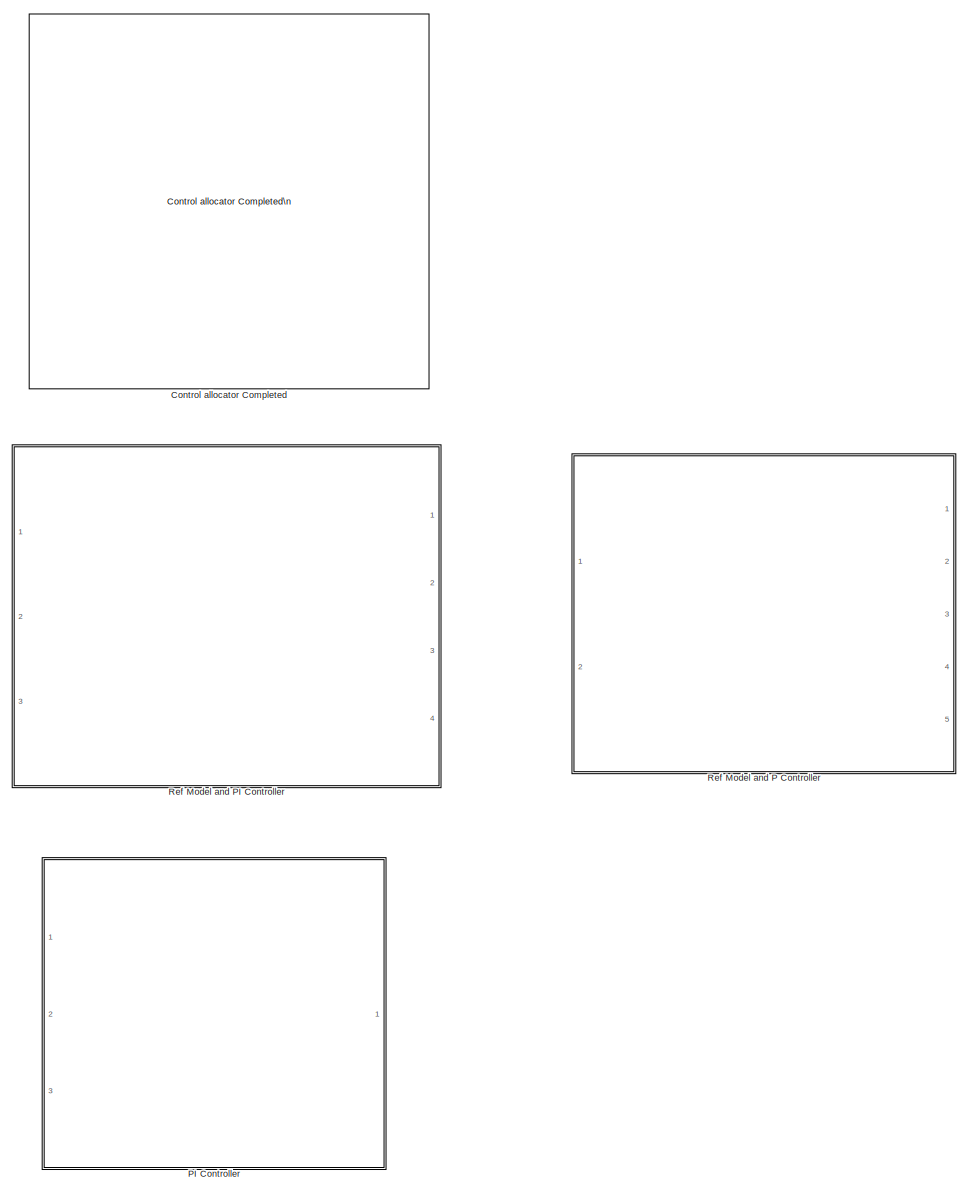
[diagram: root canvas - part 1/1, most of the canvas]
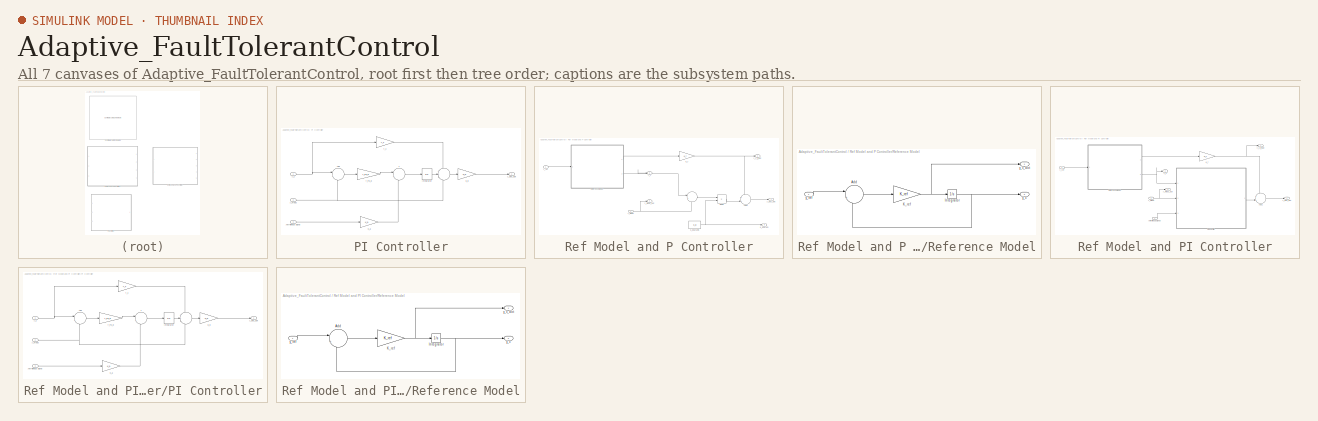
[diagram: thumbnail index - all 7 canvases of the model, root first then tree order]
MODEL Adaptive_FaultTolerantControl
KIND library
BLOCK [Reference] Control allocator Completed   REF=qcatlib/Control allocator Completed\n  (lib defined in mdl_185632192637, slx_3440b88f227d, +1 more)
  CA_type = DYN
  Ports = [10, 3]
  SID = 28
  SourceBlock = qcatlib/Control allocator Completed\n
  SourceType = Control allocator Completed
  T = 0.01
  alg = WLS
  gamma = 1e6
  iter_max = 100
  k_B = 3
  m_B = 7
  tol = 0
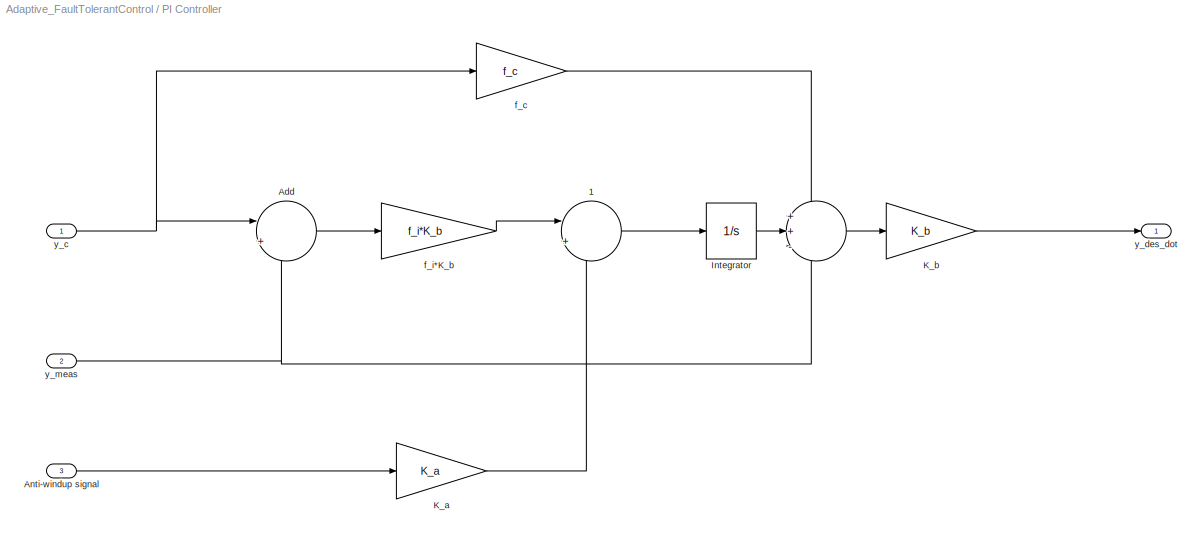
BLOCK [SubSystem] PI Controller
  Ports = [3, 1]
  RequestExecContextInheritance = off
  SID = 29
BLOCK [Sum] PI Controller/ 
  IconShape = round
  InputSameDT = off
  Inputs = ++-
  OutDataTypeStr = Inherit: Inherit via internal rule
  Ports = [3, 1]
  SID = 33
  SaturateOnIntegerOverflow = off
BLOCK [Sum] PI Controller/ 1
  IconShape = round
  InputSameDT = off
  Inputs = |++
  OutDataTypeStr = Inherit: Inherit via internal rule
  Ports = [2, 1]
  SID = 34
  SaturateOnIntegerOverflow = off
BLOCK [Sum] PI Controller/Add
  IconShape = round
  InputSameDT = off
  Inputs = |+-
  OutDataTypeStr = Inherit: Inherit via internal rule
  Ports = [2, 1]
  SID = 35
  SaturateOnIntegerOverflow = off
BLOCK [Inport] PI Controller/Anti-windup signal
  IconDisplay = Port number
  Port = 3
  SID = 32
BLOCK [Integrator] PI Controller/Integrator
  InitialCondition = y_i*(1-f_c)
  Ports = [1, 1]
  SID = 36
BLOCK [Gain] PI Controller/K_a
  Gain = K_a
  OutDataTypeStr = Inherit: Inherit via internal rule
  ParamDataTypeStr = Inherit: Inherit via internal rule
  SID = 37
  SaturateOnIntegerOverflow = off
BLOCK [Gain] PI Controller/K_b
  Gain = K_b
  OutDataTypeStr = Inherit: Inherit via internal rule
  ParamDataTypeStr = Inherit: Inherit via internal rule
  SID = 38
  SaturateOnIntegerOverflow = off
BLOCK [Gain] PI Controller/f_c
  Gain = f_c
  OutDataTypeStr = Inherit: Inherit via internal rule
  ParamDataTypeStr = Inherit: Inherit via internal rule
  SID = 39
  SaturateOnIntegerOverflow = off
BLOCK [Gain] PI Controller/f_i*K_b
  Gain = f_i*K_b
  OutDataTypeStr = Inherit: Inherit via internal rule
  ParamDataTypeStr = Inherit: Inherit via internal rule
  SID = 40
  SaturateOnIntegerOverflow = off
BLOCK [Inport] PI Controller/y_c
  IconDisplay = Port number
  SID = 30
BLOCK [Outport] PI Controller/y_des_dot
  IconDisplay = Port number
  SID = 41
BLOCK [Inport] PI Controller/y_meas
  IconDisplay = Port number
  Port = 2
  SID = 31
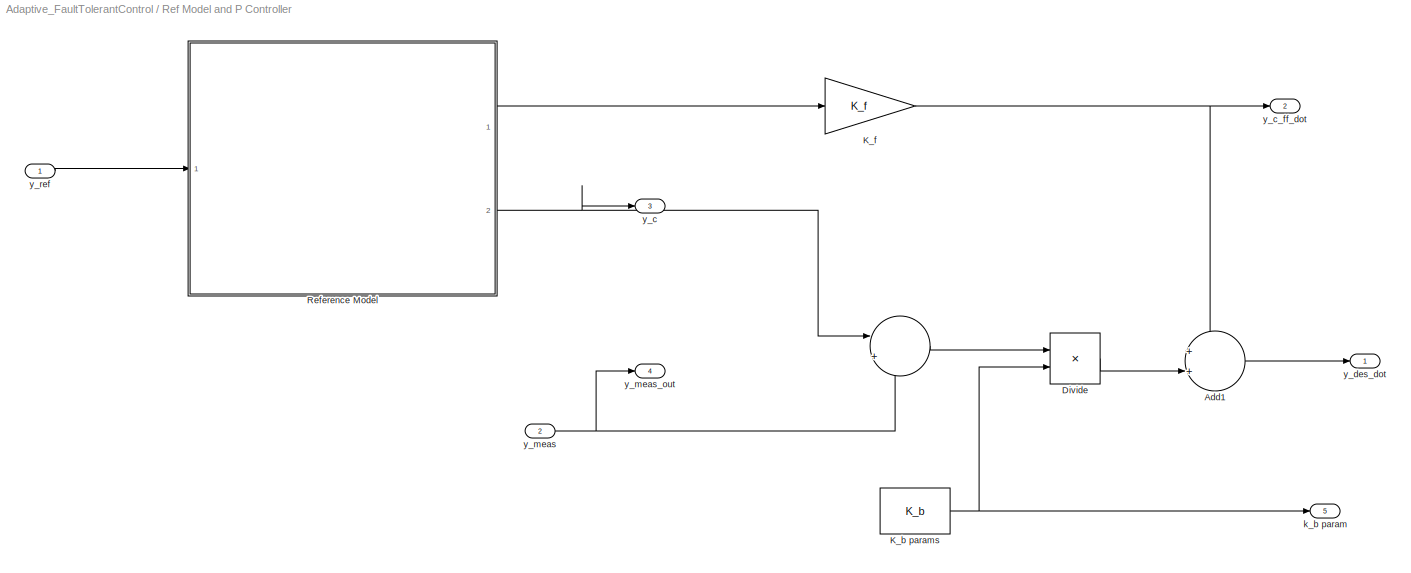
BLOCK [SubSystem] Ref Model and P Controller
  Ports = [2, 5]
  RequestExecContextInheritance = off
  SID = 48
BLOCK [Sum] Ref Model and P Controller/ 
  IconShape = round
  InputSameDT = off
  Inputs = |+-
  OutDataTypeStr = Inherit: Inherit via internal rule
  Ports = [2, 1]
  SID = 58
  SaturateOnIntegerOverflow = off
BLOCK [Sum] Ref Model and P Controller/Add1
  IconShape = round
  InputSameDT = off
  Inputs = ++|
  OutDataTypeStr = Inherit: Inherit via internal rule
  Ports = [2, 1]
  SID = 52
  SaturateOnIntegerOverflow = off
BLOCK [Product] Ref Model and P Controller/Divide
  InputSameDT = off
  Inputs = **
  OutDataTypeStr = Inherit: Inherit via internal rule
  Ports = [2, 1]
  RndMeth = Floor
  SID = 80
  SaturateOnIntegerOverflow = off
BLOCK [Constant] Ref Model and P Controller/K_b params
  SID = 78
  Value = K_b
BLOCK [Gain] Ref Model and P Controller/K_f
  Gain = K_f
  OutDataTypeStr = Inherit: Inherit via internal rule
  ParamDataTypeStr = Inherit: Inherit via internal rule
  SID = 53
  SaturateOnIntegerOverflow = off
BLOCK [SubSystem] Ref Model and P Controller/Reference Model
  Ports = [1, 2]
  RequestExecContextInheritance = off
  SID = 67
BLOCK [Sum] Ref Model and P Controller/Reference Model/Add
  IconShape = round
  InputSameDT = off
  Inputs = |+-
  OutDataTypeStr = Inherit: Inherit via internal rule
  Ports = [2, 1]
  SID = 69
  SaturateOnIntegerOverflow = off
BLOCK [Integrator] Ref Model and P Controller/Reference Model/Integrator
  InitialCondition = y_i
  Ports = [1, 1]
  SID = 70
BLOCK [Gain] Ref Model and P Controller/Reference Model/K_ref
  Gain = K_ref
  OutDataTypeStr = Inherit: Inherit via internal rule
  ParamDataTypeStr = Inherit: Inherit via internal rule
  SID = 71
  SaturateOnIntegerOverflow = off
BLOCK [Outport] Ref Model and P Controller/Reference Model/y_c
  IconDisplay = Port number
  Port = 2
  SID = 73
BLOCK [Outport] Ref Model and P Controller/Reference Model/y_c_dot
  IconDisplay = Port number
  SID = 72
BLOCK [Inport] Ref Model and P Controller/Reference Model/y_ref
  IconDisplay = Port number
  SID = 68
BLOCK [Outport] Ref Model and P Controller/k_b param
  IconDisplay = Port number
  Port = 5
  SID = 79
BLOCK [Outport] Ref Model and P Controller/y_c
  IconDisplay = Port number
  Port = 3
  SID = 76
BLOCK [Outport] Ref Model and P Controller/y_c_ff_dot
  IconDisplay = Port number
  Port = 2
  SID = 75
BLOCK [Outport] Ref Model and P Controller/y_des_dot
  IconDisplay = Port number
  SID = 74
BLOCK [Inport] Ref Model and P Controller/y_meas
  IconDisplay = Port number
  Port = 2
  SID = 50
BLOCK [Outport] Ref Model and P Controller/y_meas_out
  IconDisplay = Port number
  Port = 4
  SID = 77
BLOCK [Inport] Ref Model and P Controller/y_ref
  IconDisplay = Port number
  SID = 49
BLOCK [SubSystem] Ref Model and PI Controller
  Ports = [3, 4]
  RequestExecContextInheritance = off
  SID = 1
BLOCK [Sum] Ref Model and PI Controller/Add1
  IconShape = round
  InputSameDT = off
  Inputs = ++|
  OutDataTypeStr = Inherit: Inherit via internal rule
  Ports = [2, 1]
  SID = 5
  SaturateOnIntegerOverflow = off
BLOCK [Inport] Ref Model and PI Controller/Anti-windup signal
  IconDisplay = Port number
  Port = 3
  SID = 4
BLOCK [Gain] Ref Model and PI Controller/K_f
  Gain = K_f
  OutDataTypeStr = Inherit: Inherit via internal rule
  ParamDataTypeStr = Inherit: Inherit via internal rule
  SID = 19
  SaturateOnIntegerOverflow = off
BLOCK [SubSystem] Ref Model and PI Controller/PI Controller
  Ports = [3, 1]
  RequestExecContextInheritance = off
  SID = 6
BLOCK [Sum] Ref Model and PI Controller/PI Controller/ 
  IconShape = round
  InputSameDT = off
  Inputs = ++-
  OutDataTypeStr = Inherit: Inherit via internal rule
  Ports = [3, 1]
  SID = 10
  SaturateOnIntegerOverflow = off
BLOCK [Sum] Ref Model and PI Controller/PI Controller/ 1
  IconShape = round
  InputSameDT = off
  Inputs = |++
  OutDataTypeStr = Inherit: Inherit via internal rule
  Ports = [2, 1]
  SID = 11
  SaturateOnIntegerOverflow = off
BLOCK [Sum] Ref Model and PI Controller/PI Controller/Add
  IconShape = round
  InputSameDT = off
  Inputs = |+-
  OutDataTypeStr = Inherit: Inherit via internal rule
  Ports = [2, 1]
  SID = 12
  SaturateOnIntegerOverflow = off
BLOCK [Inport] Ref Model and PI Controller/PI Controller/Anti-windup signal
  IconDisplay = Port number
  Port = 3
  SID = 9
BLOCK [Integrator] Ref Model and PI Controller/PI Controller/Integrator
  Ports = [1, 1]
  SID = 13
BLOCK [Gain] Ref Model and PI Controller/PI Controller/K_a
  Gain = K_a
  OutDataTypeStr = Inherit: Inherit via internal rule
  ParamDataTypeStr = Inherit: Inherit via internal rule
  SID = 14
  SaturateOnIntegerOverflow = off
BLOCK [Gain] Ref Model and PI Controller/PI Controller/K_b
  Gain = K_b
  OutDataTypeStr = Inherit: Inherit via internal rule
  ParamDataTypeStr = Inherit: Inherit via internal rule
  SID = 15
  SaturateOnIntegerOverflow = off
BLOCK [Gain] Ref Model and PI Controller/PI Controller/f_c
  Gain = f_c
  OutDataTypeStr = Inherit: Inherit via internal rule
  ParamDataTypeStr = Inherit: Inherit via internal rule
  SID = 17
  SaturateOnIntegerOverflow = off
BLOCK [Gain] Ref Model and PI Controller/PI Controller/f_i*K_b
  Gain = f_i*K_b
  OutDataTypeStr = Inherit: Inherit via internal rule
  ParamDataTypeStr = Inherit: Inherit via internal rule
  SID = 16
  SaturateOnIntegerOverflow = off
BLOCK [Inport] Ref Model and PI Controller/PI Controller/y_c
  IconDisplay = Port number
  SID = 7
BLOCK [Outport] Ref Model and PI Controller/PI Controller/y_des_dot
  IconDisplay = Port number
  SID = 18
BLOCK [Inport] Ref Model and PI Controller/PI Controller/y_meas
  IconDisplay = Port number
  Port = 2
  SID = 8
BLOCK [SubSystem] Ref Model and PI Controller/Reference Model
  Ports = [1, 2]
  RequestExecContextInheritance = off
  SID = 20
BLOCK [Sum] Ref Model and PI Controller/Reference Model/Add
  IconShape = round
  InputSameDT = off
  Inputs = |+-
  OutDataTypeStr = Inherit: Inherit via internal rule
  Ports = [2, 1]
  SID = 22
  SaturateOnIntegerOverflow = off
BLOCK [Integrator] Ref Model and PI Controller/Reference Model/Integrator
  InitialCondition = y_i
  Ports = [1, 1]
  SID = 23
BLOCK [Gain] Ref Model and PI Controller/Reference Model/K_ref
  Gain = K_ref
  OutDataTypeStr = Inherit: Inherit via internal rule
  ParamDataTypeStr = Inherit: Inherit via internal rule
  SID = 24
  SaturateOnIntegerOverflow = off
BLOCK [Outport] Ref Model and PI Controller/Reference Model/y_c
  IconDisplay = Port number
  Port = 2
  SID = 26
BLOCK [Outport] Ref Model and PI Controller/Reference Model/y_c_dot
  IconDisplay = Port number
  SID = 25
BLOCK [Inport] Ref Model and PI Controller/Reference Model/y_ref
  IconDisplay = Port number
  SID = 21
BLOCK [Outport] Ref Model and PI Controller/y_c
  IconDisplay = Port number
  Port = 3
  SID = 46
BLOCK [Outport] Ref Model and PI Controller/y_c_ff_dot
  IconDisplay = Port number
  Port = 2
  SID = 45
BLOCK [Outport] Ref Model and PI Controller/y_des_dot
  IconDisplay = Port number
  SID = 27
BLOCK [Inport] Ref Model and PI Controller/y_meas
  IconDisplay = Port number
  Port = 2
  SID = 3
BLOCK [Outport] Ref Model and PI Controller/y_meas_out
  IconDisplay = Port number
  Port = 4
  SID = 47
BLOCK [Inport] Ref Model and PI Controller/y_ref
  IconDisplay = Port number
  SID = 2
LINE PI Controller/ 1:1 -> PI Controller/Integrator:1
LINE PI Controller/ :1 -> PI Controller/K_b:1
LINE PI Controller/Add:1 -> PI Controller/f_i*K_b:1
LINE PI Controller/Anti-windup signal:1 -> PI Controller/K_a:1
LINE PI Controller/Integrator:1 -> PI Controller/ :2
LINE PI Controller/K_a:1 -> PI Controller/ 1:2
LINE PI Controller/K_b:1 -> PI Controller/y_des_dot:1
LINE PI Controller/f_c:1 -> PI Controller/ :1
LINE PI Controller/f_i*K_b:1 -> PI Controller/ 1:1
NET PI Controller/y_c:1 -> PI Controller/Add:1, PI Controller/f_c:1
NET PI Controller/y_meas:1 -> PI Controller/ :3, PI Controller/Add:2
LINE Ref Model and P Controller/ :1 -> Ref Model and P Controller/Divide:1
LINE Ref Model and P Controller/Add1:1 -> Ref Model and P Controller/y_des_dot:1
LINE Ref Model and P Controller/Divide:1 -> Ref Model and P Controller/Add1:2
NET Ref Model and P Controller/K_b params:1 -> Ref Model and P Controller/Divide:2, Ref Model and P Controller/k_b param:1
NET Ref Model and P Controller/K_f:1 -> Ref Model and P Controller/Add1:1, Ref Model and P Controller/y_c_ff_dot:1
LINE Ref Model and P Controller/Reference Model/Add:1 -> Ref Model and P Controller/Reference Model/K_ref:1
NET Ref Model and P Controller/Reference Model/Integrator:1 -> Ref Model and P Controller/Reference Model/Add:2, Ref Model and P Controller/Reference Model/y_c:1
NET Ref Model and P Controller/Reference Model/K_ref:1 -> Ref Model and P Controller/Reference Model/Integrator:1, Ref Model and P Controller/Reference Model/y_c_dot:1
LINE Ref Model and P Controller/Reference Model/y_ref:1 -> Ref Model and P Controller/Reference Model/Add:1
LINE Ref Model and P Controller/Reference Model:1 -> Ref Model and P Controller/K_f:1
NET Ref Model and P Controller/Reference Model:2 -> Ref Model and P Controller/ :1, Ref Model and P Controller/y_c:1
NET Ref Model and P Controller/y_meas:1 -> Ref Model and P Controller/ :2, Ref Model and P Controller/y_meas_out:1
LINE Ref Model and P Controller/y_ref:1 -> Ref Model and P Controller/Reference Model:1
LINE Ref Model and PI Controller/Add1:1 -> Ref Model and PI Controller/y_des_dot:1
LINE Ref Model and PI Controller/Anti-windup signal:1 -> Ref Model and PI Controller/PI Controller:3
NET Ref Model and PI Controller/K_f:1 -> Ref Model and PI Controller/Add1:1, Ref Model and PI Controller/y_c_ff_dot:1
LINE Ref Model and PI Controller/PI Controller/ 1:1 -> Ref Model and PI Controller/PI Controller/Integrator:1
LINE Ref Model and PI Controller/PI Controller/ :1 -> Ref Model and PI Controller/PI Controller/K_b:1
LINE Ref Model and PI Controller/PI Controller/Add:1 -> Ref Model and PI Controller/PI Controller/f_i*K_b:1
LINE Ref Model and PI Controller/PI Controller/Anti-windup signal:1 -> Ref Model and PI Controller/PI Controller/K_a:1
LINE Ref Model and PI Controller/PI Controller/Integrator:1 -> Ref Model and PI Controller/PI Controller/ :2
LINE Ref Model and PI Controller/PI Controller/K_a:1 -> Ref Model and PI Controller/PI Controller/ 1:2
LINE Ref Model and PI Controller/PI Controller/K_b:1 -> Ref Model and PI Controller/PI Controller/y_des_dot:1
LINE Ref Model and PI Controller/PI Controller/f_c:1 -> Ref Model and PI Controller/PI Controller/ :1
LINE Ref Model and PI Controller/PI Controller/f_i*K_b:1 -> Ref Model and PI Controller/PI Controller/ 1:1
NET Ref Model and PI Controller/PI Controller/y_c:1 -> Ref Model and PI Controller/PI Controller/Add:1, Ref Model and PI Controller/PI Controller/f_c:1
NET Ref Model and PI Controller/PI Controller/y_meas:1 -> Ref Model and PI Controller/PI Controller/ :3, Ref Model and PI Controller/PI Controller/Add:2
LINE Ref Model and PI Controller/PI Controller:1 -> Ref Model and PI Controller/Add1:2
LINE Ref Model and PI Controller/Reference Model/Add:1 -> Ref Model and PI Controller/Reference Model/K_ref:1
NET Ref Model and PI Controller/Reference Model/Integrator:1 -> Ref Model and PI Controller/Reference Model/Add:2, Ref Model and PI Controller/Reference Model/y_c:1
NET Ref Model and PI Controller/Reference Model/K_ref:1 -> Ref Model and PI Controller/Reference Model/Integrator:1, Ref Model and PI Controller/Reference Model/y_c_dot:1
LINE Ref Model and PI Controller/Reference Model/y_ref:1 -> Ref Model and PI Controller/Reference Model/Add:1
LINE Ref Model and PI Controller/Reference Model:1 -> Ref Model and PI Controller/K_f:1
NET Ref Model and PI Controller/Reference Model:2 -> Ref Model and PI Controller/PI Controller:1, Ref Model and PI Controller/y_c:1
NET Ref Model and PI Controller/y_meas:1 -> Ref Model and PI Controller/PI Controller:2, Ref Model and PI Controller/y_meas_out:1
LINE Ref Model and PI Controller/y_ref:1 -> Ref Model and PI Controller/Reference Model:1
note: NET lines group one-source signal fan-out (src -> all destinations, sorted); 1:1 wires keep LINE
